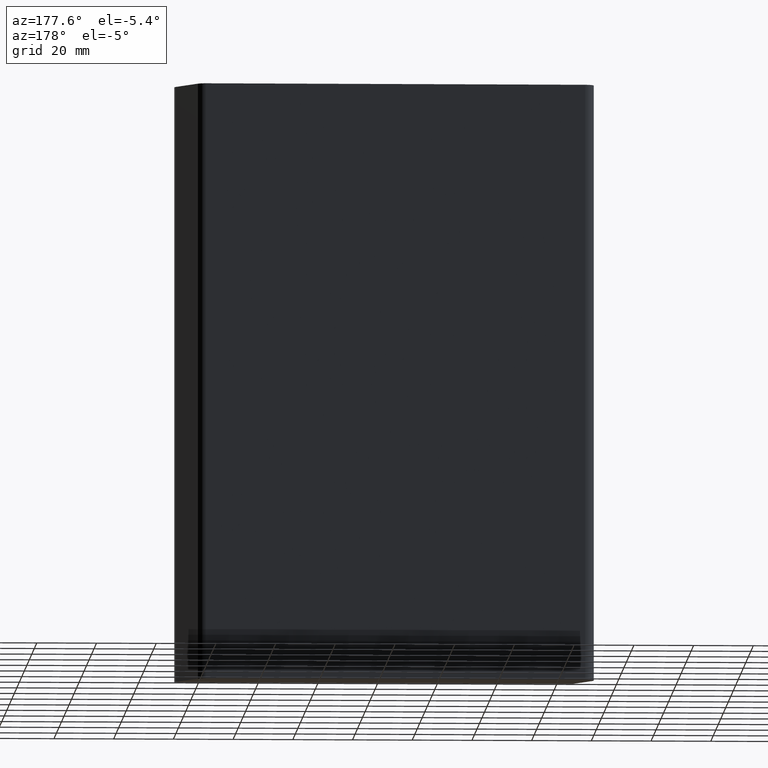
[diagram: clean part render]
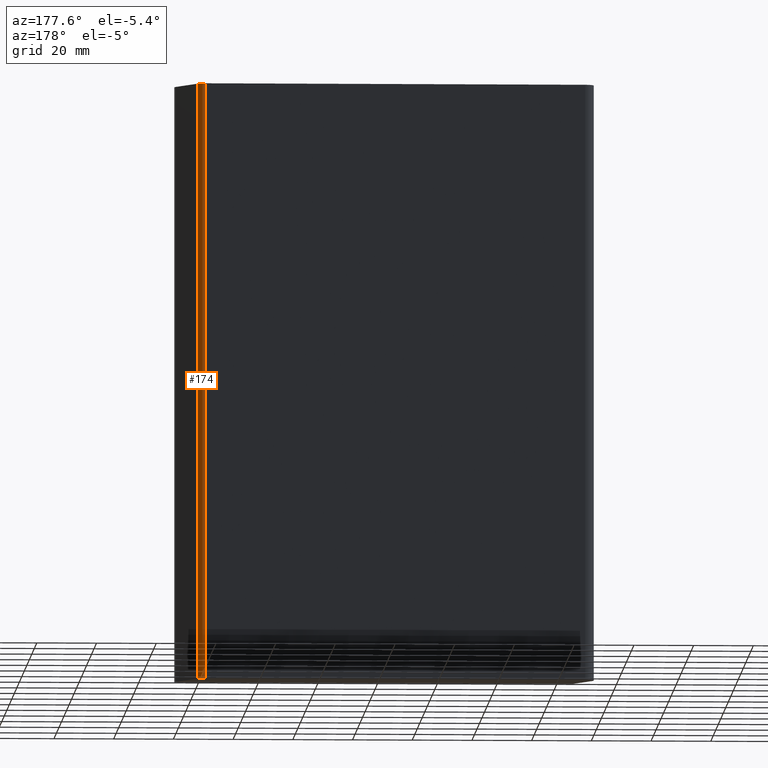
[diagram: same view with one face highlighted and labeled with its STEP entity id]
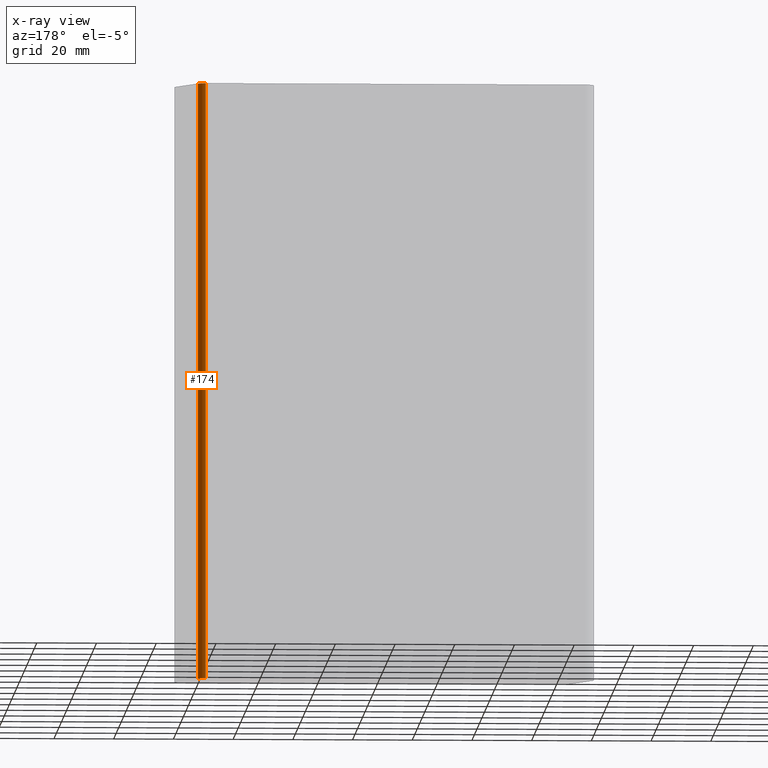
[diagram: x-ray of the same camera — body ghosted, the highlighted face saturated]
A machine part, auxiliary view. The second image highlights one B-rep face of the part: STEP entity #174.
The next image is the same camera in x-ray: the body ghosted, the highlighted face saturated — about 0% of this face is hidden behind the body in this view.
In plain terms, the highlighted cylindrical surface (edge-blend (fillet) strip) has radius 3 mm, axis along (0, 0, 1).
Its self-contained STEP definition (entity closure, byte-faithful):
#15=CIRCLE('',#199,3.00000000000001);
#16=CIRCLE('',#200,3.00000000000001);
#23=CYLINDRICAL_SURFACE('',#198,3.00000000000001);
#28=FACE_OUTER_BOUND('',#38,.T.);
#38=EDGE_LOOP('',(#123,#124,#125,#126));
#50=LINE('',#278,#66);
#51=LINE('',#284,#67);
#66=VECTOR('',#222,10.);
#67=VECTOR('',#229,10.);
#80=VERTEX_POINT('',#272);
#82=VERTEX_POINT('',#276);
#83=VERTEX_POINT('',#280);
#84=VERTEX_POINT('',#282);
#98=EDGE_CURVE('',#80,#82,#50,.T.);
#99=EDGE_CURVE('',#83,#80,#15,.T.);
#100=EDGE_CURVE('',#84,#82,#16,.T.);
#101=EDGE_CURVE('',#83,#84,#51,.T.);
#123=ORIENTED_EDGE('',*,*,#99,.T.);
#124=ORIENTED_EDGE('',*,*,#98,.T.);
#125=ORIENTED_EDGE('',*,*,#100,.F.);
#126=ORIENTED_EDGE('',*,*,#101,.F.);
#174=ADVANCED_FACE('',(#28),#23,.T.);
#198=AXIS2_PLACEMENT_3D('',#279,#223,#224);
#199=AXIS2_PLACEMENT_3D('',#281,#225,#226);
#200=AXIS2_PLACEMENT_3D('',#283,#227,#228);
#222=DIRECTION('',(0.,0.,1.));
#223=DIRECTION('center_axis',(0.,0.,1.));
#224=DIRECTION('ref_axis',(0.866025402866326,0.500000001590219,0.));
#225=DIRECTION('center_axis',(0.,0.,1.));
#226=DIRECTION('ref_axis',(0.866025402866326,0.500000001590219,0.));
#227=DIRECTION('center_axis',(0.,0.,1.));
#228=DIRECTION('ref_axis',(0.866025402866326,0.500000001590219,0.));
#229=DIRECTION('',(0.,0.,1.));
#272=CARTESIAN_POINT('',(56.6076951217249,18.0000001125459,0.));
#276=CARTESIAN_POINT('',(56.6076951217249,18.0000001125459,200.));
#278=CARTESIAN_POINT('',(56.6076951217249,18.0000001125459,0.));
#279=CARTESIAN_POINT('Origin',(56.6076951275869,15.0000001125459,0.));
#280=CARTESIAN_POINT('',(59.2057713361858,16.5000001173165,0.));
#281=CARTESIAN_POINT('Origin',(56.6076951275869,15.0000001125459,0.));
#282=CARTESIAN_POINT('',(59.2057713361858,16.5000001173165,200.));
#283=CARTESIAN_POINT('Origin',(56.6076951275869,15.0000001125459,200.));
#284=CARTESIAN_POINT('',(59.2057713361858,16.5000001173165,0.));